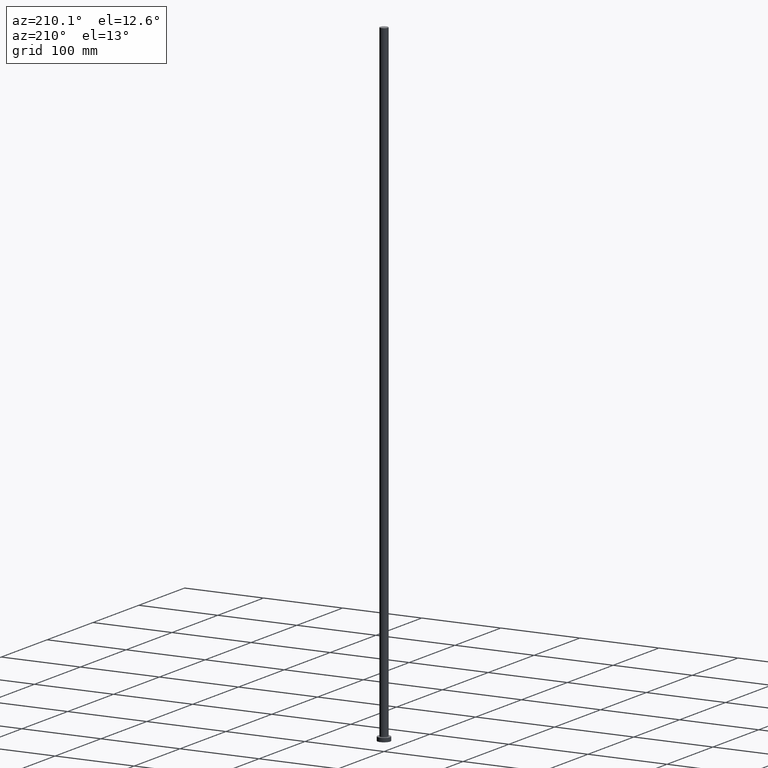
[diagram: clean part render]
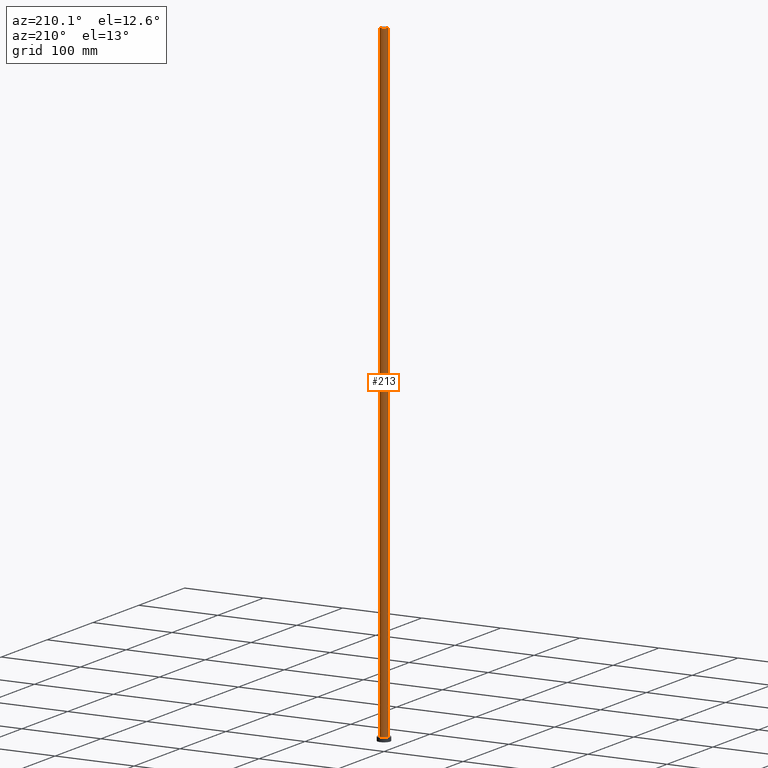
[diagram: same view with one face highlighted and labeled with its STEP entity id]
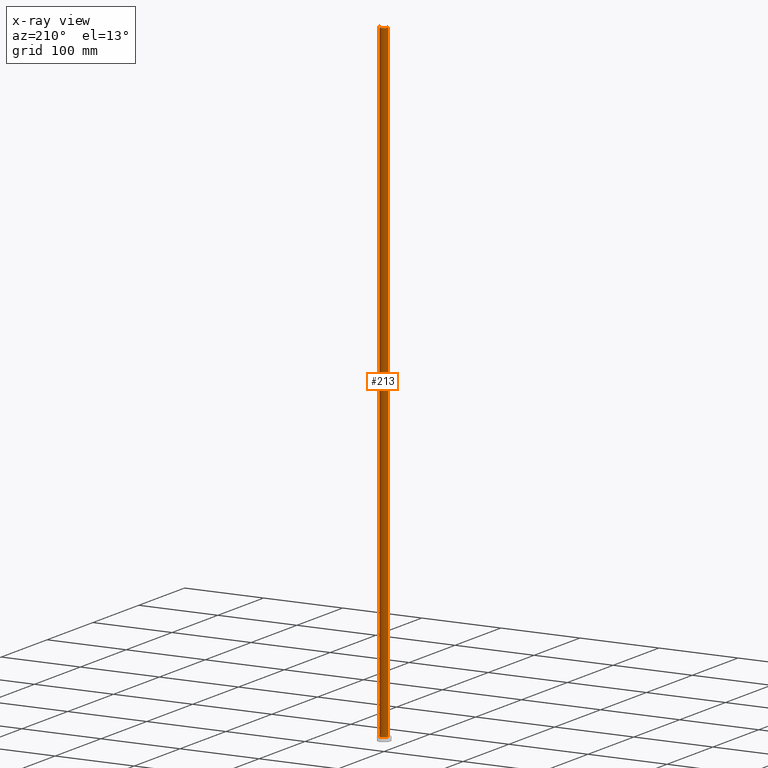
[diagram: x-ray of the same camera — body ghosted, the highlighted face saturated]
A machine part, auxiliary view. The second image highlights one B-rep face of the part: STEP entity #213.
The next image is the same camera in x-ray: the body ghosted, the highlighted face saturated — about 0% of this face is hidden behind the body in this view.
In plain terms, the highlighted cylindrical surface (edge-blend (fillet) strip) has radius 5 mm, axis along (-0, -0, -1).
Its self-contained STEP definition (entity closure, byte-faithful):
#25 = EDGE_CURVE ( 'NONE', #171, #107, #153, .T. ) ;
#28 = VERTEX_POINT ( 'NONE', #77 ) ;
#31 = EDGE_CURVE ( 'NONE', #107, #91, #58, .T. ) ;
#37 = DIRECTION ( 'NONE',  ( -0.000000000000000000, -0.000000000000000000, -1.000000000000000000 ) ) ;
#58 = LINE ( 'NONE', #214, #247 ) ;
#65 = DIRECTION ( 'NONE',  ( -0.000000000000000000, -0.000000000000000000, -1.000000000000000000 ) ) ;
#77 = CARTESIAN_POINT ( 'NONE',  ( 5.000000000000000888, 6.123233995736767268E-16, 5.000000000000000000 ) ) ;
#83 = LINE ( 'NONE', #147, #207 ) ;
#86 = AXIS2_PLACEMENT_3D ( 'NONE', #232, #65, #124 ) ;
#91 = VERTEX_POINT ( 'NONE', #216 ) ;
#101 = ORIENTED_EDGE ( 'NONE', *, *, #31, .F. ) ;
#102 = DIRECTION ( 'NONE',  ( 0.000000000000000000, 0.000000000000000000, 1.000000000000000000 ) ) ;
#105 = CARTESIAN_POINT ( 'NONE',  ( 5.000000000000000888, 6.123233995736767268E-16, 800.0000000000000000 ) ) ;
#107 = VERTEX_POINT ( 'NONE', #120 ) ;
#108 = CIRCLE ( 'NONE', #133, 5.000000000000000888 ) ;
#113 = AXIS2_PLACEMENT_3D ( 'NONE', #245, #246, #140 ) ;
#114 = ORIENTED_EDGE ( 'NONE', *, *, #25, .F. ) ;
#120 = CARTESIAN_POINT ( 'NONE',  ( -5.000000000000000888, 0.000000000000000000, 800.0000000000000000 ) ) ;
#124 = DIRECTION ( 'NONE',  ( -1.000000000000000000, 0.000000000000000000, 0.000000000000000000 ) ) ;
#133 = AXIS2_PLACEMENT_3D ( 'NONE', #167, #102, #180 ) ;
#135 = EDGE_LOOP ( 'NONE', ( #114, #151, #225, #101 ) ) ;
#139 = EDGE_CURVE ( 'NONE', #171, #28, #83, .T. ) ;
#140 = DIRECTION ( 'NONE',  ( 1.000000000000000000, 0.000000000000000000, 0.000000000000000000 ) ) ;
#147 = CARTESIAN_POINT ( 'NONE',  ( 5.000000000000000888, 6.123233995736767268E-16, 800.0000000000000000 ) ) ;
#151 = ORIENTED_EDGE ( 'NONE', *, *, #139, .T. ) ;
#153 = CIRCLE ( 'NONE', #113, 5.000000000000000888 ) ;
#162 = CYLINDRICAL_SURFACE ( 'NONE', #86, 5.000000000000000888 ) ;
#167 = CARTESIAN_POINT ( 'NONE',  ( 0.000000000000000000, 0.000000000000000000, 5.000000000000000000 ) ) ;
#171 = VERTEX_POINT ( 'NONE', #105 ) ;
#180 = DIRECTION ( 'NONE',  ( 1.000000000000000000, 0.000000000000000000, 0.000000000000000000 ) ) ;
#188 = EDGE_CURVE ( 'NONE', #28, #91, #108, .T. ) ;
#195 = DIRECTION ( 'NONE',  ( -0.000000000000000000, -0.000000000000000000, -1.000000000000000000 ) ) ;
#207 = VECTOR ( 'NONE', #195, 1000.000000000000000 ) ;
#213 = ADVANCED_FACE ( 'NONE', ( #252 ), #162, .T. ) ;
#214 = CARTESIAN_POINT ( 'NONE',  ( -5.000000000000000888, 0.000000000000000000, 800.0000000000000000 ) ) ;
#216 = CARTESIAN_POINT ( 'NONE',  ( -5.000000000000000888, 0.000000000000000000, 5.000000000000000000 ) ) ;
#225 = ORIENTED_EDGE ( 'NONE', *, *, #188, .T. ) ;
#232 = CARTESIAN_POINT ( 'NONE',  ( 0.000000000000000000, 0.000000000000000000, 800.0000000000000000 ) ) ;
#245 = CARTESIAN_POINT ( 'NONE',  ( 0.000000000000000000, 0.000000000000000000, 800.0000000000000000 ) ) ;
#246 = DIRECTION ( 'NONE',  ( 0.000000000000000000, 0.000000000000000000, 1.000000000000000000 ) ) ;
#247 = VECTOR ( 'NONE', #37, 1000.000000000000000 ) ;
#252 = FACE_OUTER_BOUND ( 'NONE', #135, .T. ) ;